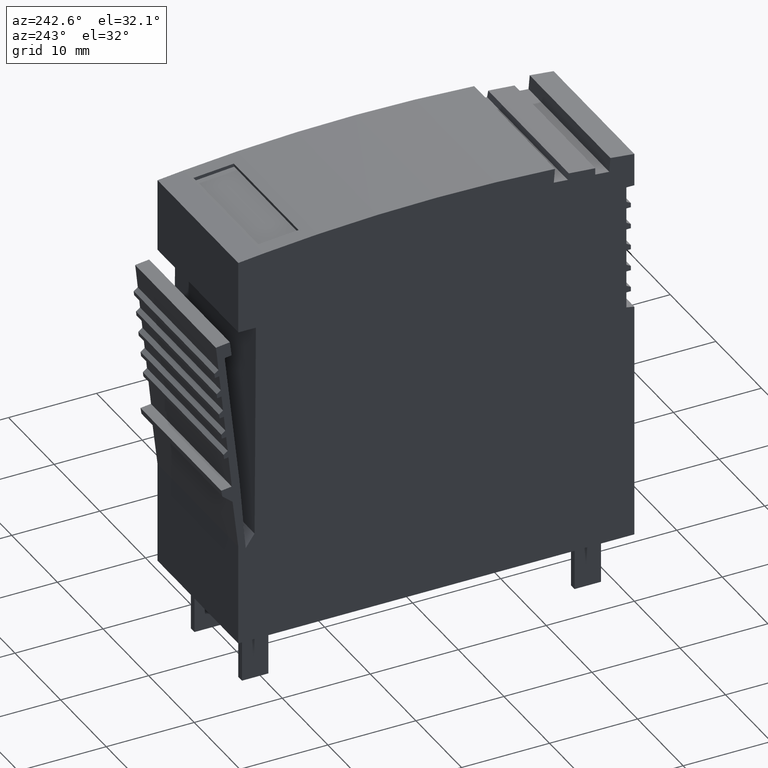
[diagram: clean part render]
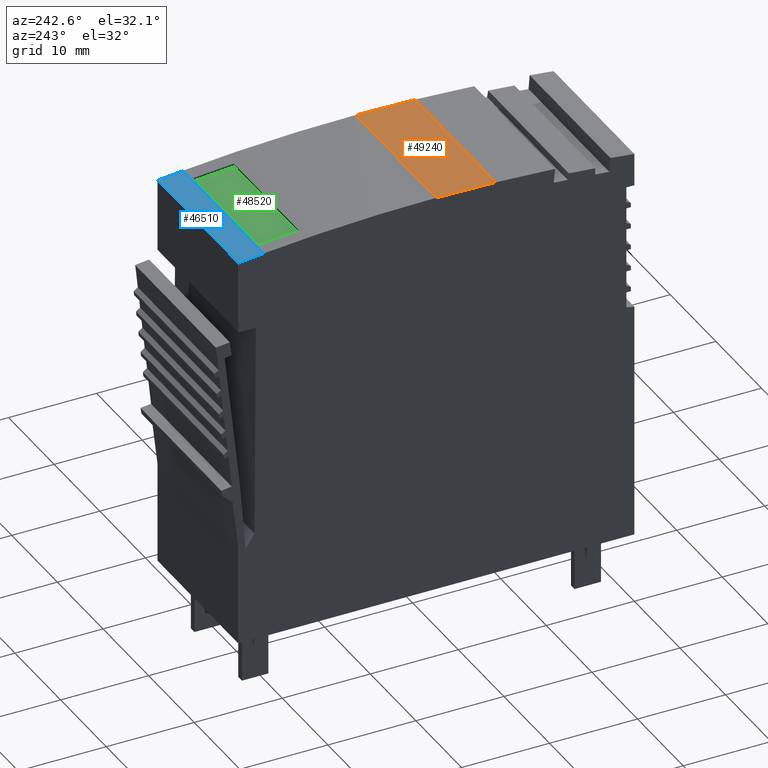
[diagram: same view with three faces highlighted in distinct colors, each labeled with its STEP entity id]
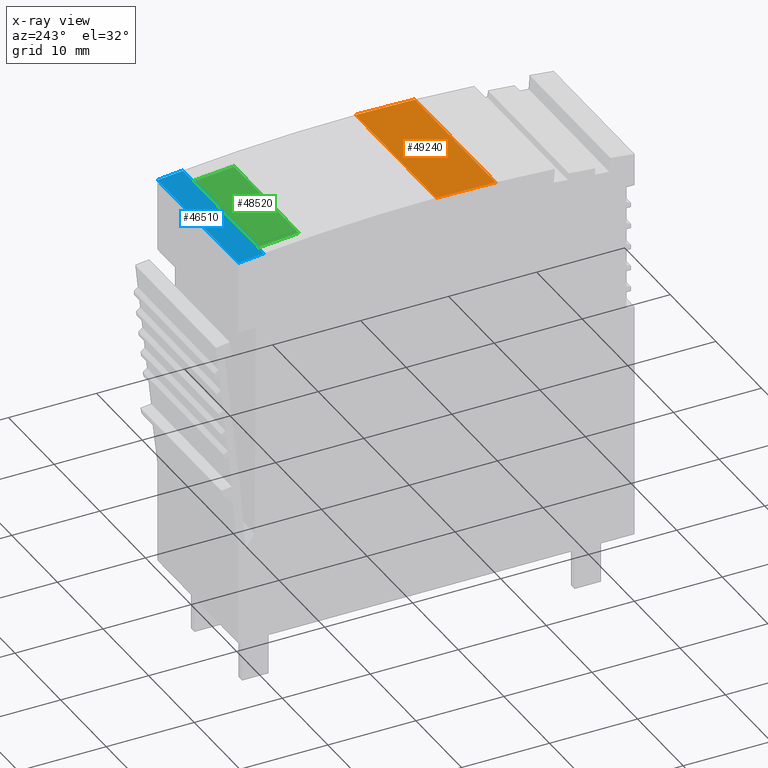
[diagram: x-ray of the same camera — body ghosted, the three highlighted faces saturated]
A machine part, auxiliary view with three faces highlighted in distinct colors.
The next image is the same camera in x-ray (body ghosted, the three faces saturated) — at least one of them is partly hidden behind the body in this view.
Their STEP definitions:

[orange] entity #49240 — the highlighted planar face has unit normal (0, 0.0168, -0.9999).
#4000=CARTESIAN_POINT('',(159.176055143543,93.8342231833957,
-0.100000005788304));
#4010=VERTEX_POINT('',#4000);
#4040=CARTESIAN_POINT('',(126.236365948156,94.3883623972606,
-0.100000002892187));
#4050=DIRECTION('',(-0.999858526007718,0.0168204628257921,
8.79093981559397E-11));
#4060=VECTOR('',#4050,1.);
#4070=LINE('',#4040,#4060);
#4080=CARTESIAN_POINT('',(165.903288411385,93.7210519954877,
-0.100000006379775));
#4090=VERTEX_POINT('',#4080);
#4100=EDGE_CURVE('',#4090,#4010,#4070,.T.);
#10920=CARTESIAN_POINT('',(165.90328840983,93.7210519955137,
-17.8000000074234));
#10930=VERTEX_POINT('',#10920);
#10960=CARTESIAN_POINT('',(126.236365947378,94.3883623972475,
-17.8000000056796));
#10970=DIRECTION('',(-0.999858526007718,0.0168204628257921,
4.39547821673335E-11));
#10980=VECTOR('',#10970,1.);
#10990=LINE('',#10960,#10980);
#11000=CARTESIAN_POINT('',(159.176055141951,93.8342231833963,
-17.8000000071277));
#11010=VERTEX_POINT('',#11000);
#11020=EDGE_CURVE('',#10930,#11010,#10990,.T.);
#48910=CARTESIAN_POINT('',(159.176055142554,93.8342231833963,
-10.9500000060875));
#48920=DIRECTION('',(8.79218364779888E-11,1.12560738891045E-32,1.));
#48930=VECTOR('',#48920,1.);
#48940=LINE('',#48910,#48930);
#48950=EDGE_CURVE('',#11010,#4010,#48940,.T.);
#49080=CARTESIAN_POINT('',(165.9032884081,93.7210519955268,
-28.6500024103582));
#49090=DIRECTION('',(-0.0168204628257921,-0.999858526007718,
1.47888598205338E-12));
#49100=DIRECTION('',(-0.999858526007718,0.0168204628257921,
8.79093978247735E-11));
#49110=AXIS2_PLACEMENT_3D('',#49080,#49090,#49100);
#49120=PLANE('',#49110);
#49130=ORIENTED_EDGE('',*,*,#48950,.T.);
#49140=ORIENTED_EDGE('',*,*,#11020,.T.);
#49150=CARTESIAN_POINT('',(165.903288410432,93.7210519954876,
-10.9500000063833));
#49160=DIRECTION('',(8.79218364779888E-11,-1.87610816513552E-28,1.));
#49170=VECTOR('',#49160,1.);
#49180=LINE('',#49150,#49170);
#49190=EDGE_CURVE('',#10930,#4090,#49180,.T.);
#49200=ORIENTED_EDGE('',*,*,#49190,.F.);
#49210=ORIENTED_EDGE('',*,*,#4100,.F.);
#49220=EDGE_LOOP('',(#49210,#49200,#49140,#49130));
#49230=FACE_OUTER_BOUND('',#49220,.T.);
#49240=ADVANCED_FACE('',(#49230),#49120,.F.);

[blue] entity #46510 — the highlighted planar face has unit normal (-0, -0.1046, -0.9945).
#3680=CARTESIAN_POINT('',(136.676055085501,92.5645681167391,
-0.100000003810063));
#3690=VERTEX_POINT('',#3680);
#3720=CARTESIAN_POINT('',(126.236365948156,91.4670202250501,
-0.100000002892187));
#3730=DIRECTION('',(-0.994518999807072,-0.104556009022637,
8.74399331294414E-11));
#3740=VECTOR('',#3730,1.);
#3750=LINE('',#3720,#3740);
#3760=CARTESIAN_POINT('',(139.549402600269,92.8666495740993,
-0.100000004062692));
#3770=VERTEX_POINT('',#3760);
#3780=EDGE_CURVE('',#3770,#3690,#3750,.T.);
#11240=CARTESIAN_POINT('',(139.549402598712,92.8666495740992,
-17.8000000062649));
#11250=VERTEX_POINT('',#11240);
#11280=CARTESIAN_POINT('',(126.236365947378,91.4670202251319,
-17.8000000056796));
#11290=DIRECTION('',(-0.994518999807072,-0.104556009022637,
4.37200512479871E-11));
#11300=VECTOR('',#11290,1.);
#11310=LINE('',#11280,#11300);
#11320=CARTESIAN_POINT('',(136.676055083813,92.564568116881,
-17.8000000061386));
#11330=VERTEX_POINT('',#11320);
#11340=EDGE_CURVE('',#11250,#11330,#11310,.T.);
#46160=CARTESIAN_POINT('',(136.67605508402,92.5645681167335,
-1.10000000608916));
#46170=DIRECTION('',(-4.40687738054683E-17,-1.61558918794564E-27,-1.));
#46180=VECTOR('',#46170,1.);
#46190=LINE('',#46160,#46180);
#46200=EDGE_CURVE('',#3690,#11330,#46190,.T.);
#46350=CARTESIAN_POINT('',(139.854986945716,92.8987763407557,
-28.650002408068));
#46360=DIRECTION('',(0.104556009022637,-0.994518999807072,
-9.19275632807943E-12));
#46370=DIRECTION('',(-0.994518999807072,-0.104556009022637,
8.74399368752903E-11));
#46380=AXIS2_PLACEMENT_3D('',#46350,#46360,#46370);
#46390=PLANE('',#46380);
#46400=ORIENTED_EDGE('',*,*,#46200,.F.);
#46410=ORIENTED_EDGE('',*,*,#11340,.T.);
#46420=CARTESIAN_POINT('',(139.549402599315,92.8666495740992,
-10.9500000052247));
#46430=DIRECTION('',(-8.79218364779888E-11,-2.35823780302774E-27,-1.));
#46440=VECTOR('',#46430,1.);
#46450=LINE('',#46420,#46440);
#46460=EDGE_CURVE('',#3770,#11250,#46450,.T.);
#46470=ORIENTED_EDGE('',*,*,#46460,.T.);
#46480=ORIENTED_EDGE('',*,*,#3780,.F.);
#46490=EDGE_LOOP('',(#46480,#46470,#46410,#46400));
#46500=FACE_OUTER_BOUND('',#46490,.T.);
#46510=ADVANCED_FACE('',(#46500),#46390,.F.);

[green] entity #48520 — the highlighted planar face has unit normal (0, 0.0866, 0.9962).
#47260=CARTESIAN_POINT('',(139.891348164497,92.5084299628686,
-1.85000000608916));
#47270=VERTEX_POINT('',#47260);
#47300=CARTESIAN_POINT('',(126.167056033927,91.3149053184184,
-1.85000000608611));
#47310=DIRECTION('',(-0.996239911962891,-0.086637392690293,
4.27280812845623E-17));
#47320=VECTOR('',#47310,1.);
#47330=LINE('',#47300,#47320);
#47340=CARTESIAN_POINT('',(144.473933239017,92.9069516621805,
-1.85000000608916));
#47350=VERTEX_POINT('',#47340);
#47360=EDGE_CURVE('',#47350,#47270,#47330,.T.);
#47600=CARTESIAN_POINT('',(139.891348164494,92.5084299629031,
-10.9500000052398));
#47610=DIRECTION('',(3.5330178222733E-13,-3.79230613630052E-12,1.));
#47620=VECTOR('',#47610,1.);
#47630=LINE('',#47600,#47620);
#47640=CARTESIAN_POINT('',(139.891348164492,92.5084299629224,
-16.0500000054104));
#47650=VERTEX_POINT('',#47640);
#47660=EDGE_CURVE('',#47650,#47270,#47630,.T.);
#47960=CARTESIAN_POINT('',(144.473933239012,92.9069516622344,
-16.0500000054104));
#47970=VERTEX_POINT('',#47960);
#48000=CARTESIAN_POINT('',(126.167056033303,91.3149053184184,
-16.0500000054074));
#48010=DIRECTION('',(0.996239911962891,0.086637392690293,
-4.27280812845623E-17));
#48020=VECTOR('',#48010,1.);
#48030=LINE('',#48000,#48020);
#48040=EDGE_CURVE('',#47650,#47970,#48030,.T.);
#48230=CARTESIAN_POINT('',(144.473933239014,92.906951662215,
-10.9500000054412));
#48240=DIRECTION('',(-3.53301782227337E-13,3.79230613630053E-12,-1.));
#48250=VECTOR('',#48240,1.);
#48260=LINE('',#48230,#48250);
#48270=EDGE_CURVE('',#47350,#47970,#48260,.T.);
#48410=CARTESIAN_POINT('',(144.720776326791,92.9284182198494,
-0.250000006503329));
#48420=DIRECTION('',(-0.086637392690293,0.996239911962891,
3.80865587660937E-12));
#48430=DIRECTION('',(0.996239911962891,0.086637392690293,
-4.37955822712304E-11));
#48440=AXIS2_PLACEMENT_3D('',#48410,#48420,#48430);
#48450=PLANE('',#48440);
#48460=ORIENTED_EDGE('',*,*,#48040,.F.);
#48470=ORIENTED_EDGE('',*,*,#48270,.T.);
#48480=ORIENTED_EDGE('',*,*,#47360,.F.);
#48490=ORIENTED_EDGE('',*,*,#47660,.T.);
#48500=EDGE_LOOP('',(#48490,#48480,#48470,#48460));
#48510=FACE_OUTER_BOUND('',#48500,.T.);
#48520=ADVANCED_FACE('',(#48510),#48450,.T.);